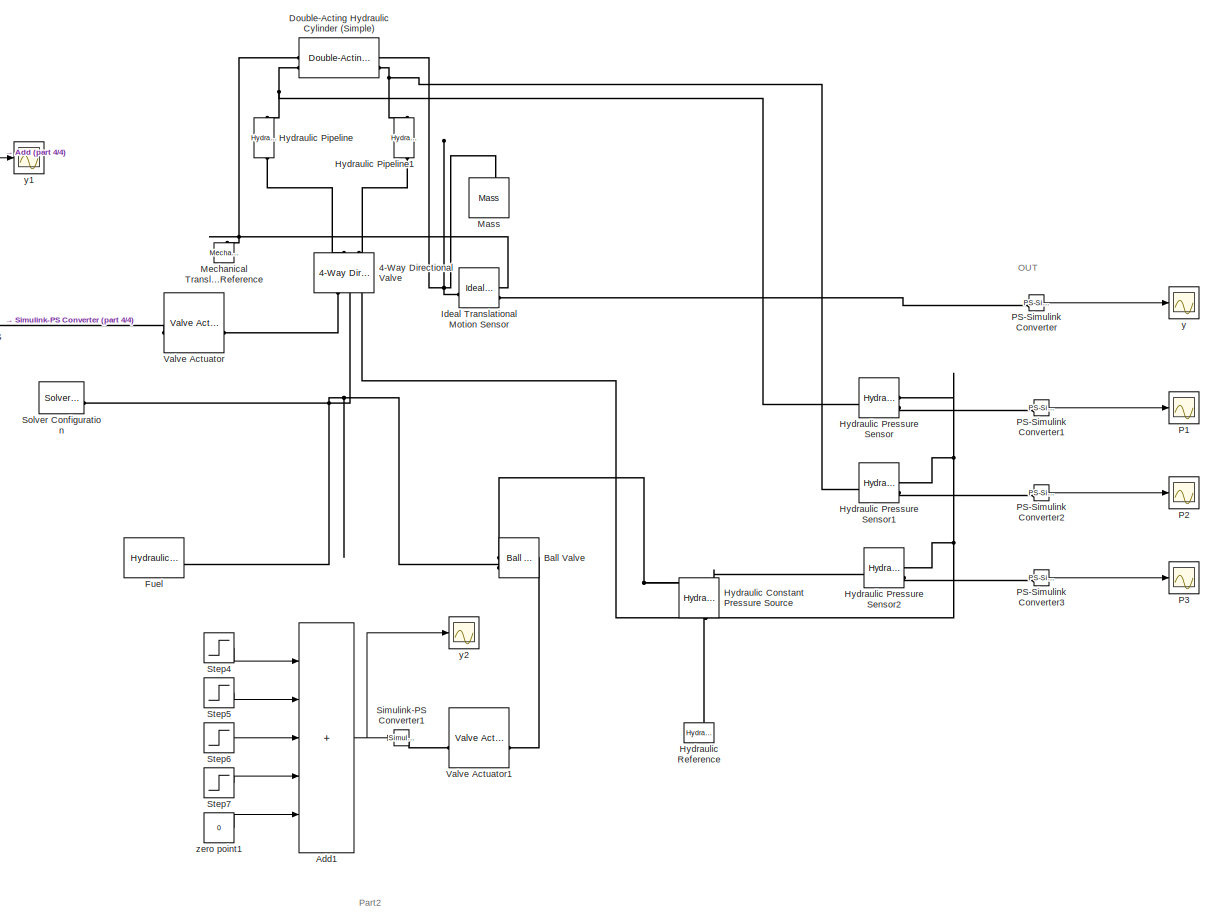
[diagram: root canvas - part 1/4, right side, full height]
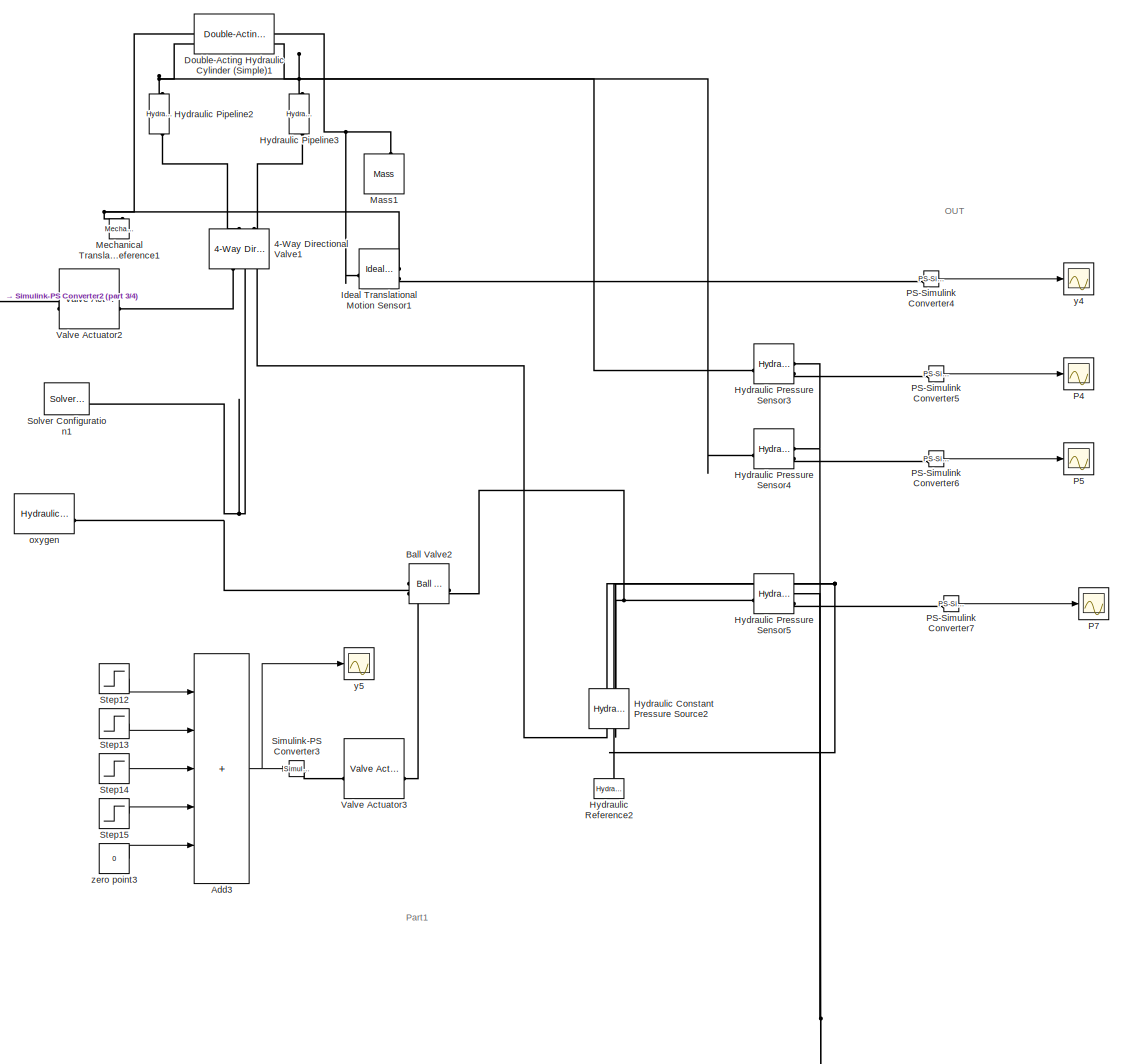
[diagram: root canvas - part 2/4, left side, full height]
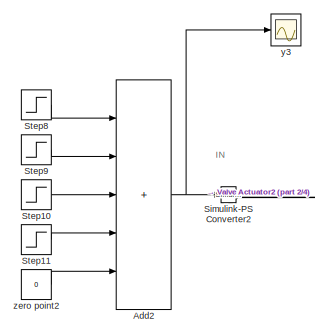
[diagram: root canvas - part 3/4, top left region]
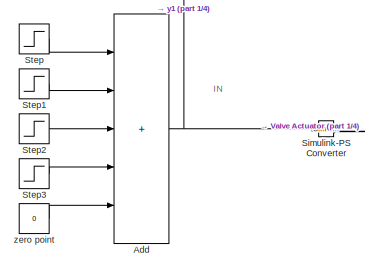
[diagram: root canvas - part 4/4, top center region]
MODEL slx_8445d724061f
KIND model
CONFIG AbsTol = auto
CONFIG EnableMultiTasking = off
CONFIG FixedStep = auto
CONFIG MaxStep = auto
CONFIG MinStep = auto
CONFIG RelTol = 1e-3
CONFIG SampleTimeConstraint = Unconstrained
CONFIG SolverName = VariableStepAuto
CONFIG StartTime = 0.0
CONFIG StopTime = 10.0
BLOCK [Reference] 4-Way Directional Valve  REF=sh_lib/Valves/Directional Valves/4-Way Directional
Valve
  NameLocation = right
  SourceBlock = sh_lib/Valves/Directional Valves/4-Way Directional\nValve
  SourceType = 4-Way Directional\nValve
BLOCK [Reference] 4-Way Directional Valve1  REF=sh_lib/Valves/Directional Valves/4-Way Directional
Valve
  NameLocation = right
  SourceBlock = sh_lib/Valves/Directional Valves/4-Way Directional\nValve
  SourceType = 4-Way Directional\nValve
BLOCK [Sum] Add
  IconShape = rectangular
  Inputs = +++++
BLOCK [Sum] Add1
  IconShape = rectangular
  Inputs = +++++
BLOCK [Sum] Add2
  IconShape = rectangular
  Inputs = +++++
BLOCK [Sum] Add3
  IconShape = rectangular
  Inputs = +++++
BLOCK [Reference] Ball Valve  REF=sh_lib/Valves/Flow Control Valves/Ball Valve
  NameLocation = top
  SourceBlock = sh_lib/Valves/Flow Control Valves/Ball Valve
  SourceType = Ball Valve
BLOCK [Reference] Ball Valve2  REF=sh_lib/Valves/Flow Control Valves/Ball Valve
  NameLocation = top
  SourceBlock = sh_lib/Valves/Flow Control Valves/Ball Valve
  SourceType = Ball Valve
BLOCK [Reference] Double-Acting Hydraulic Cylinder (Simple)  REF=sh_lib/Hydraulic Cylinders/Double-Acting
Hydraulic Cylinder
(Simple)
  SourceBlock = sh_lib/Hydraulic Cylinders/Double-Acting\nHydraulic Cylinder\n(Simple)
  SourceType = Double-Acting\nHydraulic Cylinder\n(Simple)
BLOCK [Reference] Double-Acting Hydraulic Cylinder (Simple)1  REF=sh_lib/Hydraulic Cylinders/Double-Acting
Hydraulic Cylinder
(Simple)
  SourceBlock = sh_lib/Hydraulic Cylinders/Double-Acting\nHydraulic Cylinder\n(Simple)
  SourceType = Double-Acting\nHydraulic Cylinder\n(Simple)
BLOCK [Reference] Fuel  REF=sh_lib/Hydraulic Utilities/Hydraulic Fluid
  SourceBlock = sh_lib/Hydraulic Utilities/Hydraulic Fluid
  SourceType = Hydraulic Fluid
BLOCK [Reference] Hydraulic Constant Pressure Source  REF=fl_lib/Hydraulic/Hydraulic Sources/Hydraulic Constant
Pressure Source
  NameLocation = right
  SourceBlock = fl_lib/Hydraulic/Hydraulic Sources/Hydraulic Constant\nPressure Source
  SourceType = Hydraulic Constant\nPressure Source
BLOCK [Reference] Hydraulic Constant Pressure Source2  REF=fl_lib/Hydraulic/Hydraulic Sources/Hydraulic Constant
Pressure Source
  NameLocation = right
  SourceBlock = fl_lib/Hydraulic/Hydraulic Sources/Hydraulic Constant\nPressure Source
  SourceType = Hydraulic Constant\nPressure Source
BLOCK [Reference] Hydraulic Pipeline  REF=sh_lib/Pipelines/Hydraulic Pipeline
  NameLocation = right
  SourceBlock = sh_lib/Pipelines/Hydraulic Pipeline
  SourceType = Hydraulic Pipeline
BLOCK [Reference] Hydraulic Pipeline1  REF=sh_lib/Pipelines/Hydraulic Pipeline
  NameLocation = left
  SourceBlock = sh_lib/Pipelines/Hydraulic Pipeline
  SourceType = Hydraulic Pipeline
BLOCK [Reference] Hydraulic Pipeline2  REF=sh_lib/Pipelines/Hydraulic Pipeline
  NameLocation = right
  SourceBlock = sh_lib/Pipelines/Hydraulic Pipeline
  SourceType = Hydraulic Pipeline
BLOCK [Reference] Hydraulic Pipeline3  REF=sh_lib/Pipelines/Hydraulic Pipeline
  NameLocation = left
  SourceBlock = sh_lib/Pipelines/Hydraulic Pipeline
  SourceType = Hydraulic Pipeline
BLOCK [Reference] Hydraulic Pressure Sensor  REF=fl_lib/Hydraulic/Hydraulic Sensors/Hydraulic Pressure
Sensor
  SourceBlock = fl_lib/Hydraulic/Hydraulic Sensors/Hydraulic Pressure\nSensor
  SourceType = Hydraulic Pressure\nSensor
BLOCK [Reference] Hydraulic Pressure Sensor1  REF=fl_lib/Hydraulic/Hydraulic Sensors/Hydraulic Pressure
Sensor
  SourceBlock = fl_lib/Hydraulic/Hydraulic Sensors/Hydraulic Pressure\nSensor
  SourceType = Hydraulic Pressure\nSensor
BLOCK [Reference] Hydraulic Pressure Sensor2  REF=fl_lib/Hydraulic/Hydraulic Sensors/Hydraulic Pressure
Sensor
  SourceBlock = fl_lib/Hydraulic/Hydraulic Sensors/Hydraulic Pressure\nSensor
  SourceType = Hydraulic Pressure\nSensor
BLOCK [Reference] Hydraulic Pressure Sensor3  REF=fl_lib/Hydraulic/Hydraulic Sensors/Hydraulic Pressure
Sensor
  SourceBlock = fl_lib/Hydraulic/Hydraulic Sensors/Hydraulic Pressure\nSensor
  SourceType = Hydraulic Pressure\nSensor
BLOCK [Reference] Hydraulic Pressure Sensor4  REF=fl_lib/Hydraulic/Hydraulic Sensors/Hydraulic Pressure
Sensor
  SourceBlock = fl_lib/Hydraulic/Hydraulic Sensors/Hydraulic Pressure\nSensor
  SourceType = Hydraulic Pressure\nSensor
BLOCK [Reference] Hydraulic Pressure Sensor5  REF=fl_lib/Hydraulic/Hydraulic Sensors/Hydraulic Pressure
Sensor
  SourceBlock = fl_lib/Hydraulic/Hydraulic Sensors/Hydraulic Pressure\nSensor
  SourceType = Hydraulic Pressure\nSensor
BLOCK [Reference] Hydraulic Reference  REF=fl_lib/Hydraulic/Hydraulic Elements/Hydraulic Reference
  NameLocation = right
  SourceBlock = fl_lib/Hydraulic/Hydraulic Elements/Hydraulic Reference
  SourceType = Hydraulic Reference
BLOCK [Reference] Hydraulic Reference2  REF=fl_lib/Hydraulic/Hydraulic Elements/Hydraulic Reference
  NameLocation = right
  SourceBlock = fl_lib/Hydraulic/Hydraulic Elements/Hydraulic Reference
  SourceType = Hydraulic Reference
BLOCK [Reference] Ideal Translational Motion Sensor  REF=fl_lib/Mechanical/Mechanical Sensors/Ideal Translational
Motion Sensor
  SourceBlock = fl_lib/Mechanical/Mechanical Sensors/Ideal Translational\nMotion Sensor
  SourceType = Ideal Translational\nMotion Sensor
BLOCK [Reference] Ideal Translational Motion Sensor1  REF=fl_lib/Mechanical/Mechanical Sensors/Ideal Translational
Motion Sensor
  SourceBlock = fl_lib/Mechanical/Mechanical Sensors/Ideal Translational\nMotion Sensor
  SourceType = Ideal Translational\nMotion Sensor
BLOCK [Reference] Mass  REF=fl_lib/Mechanical/Translational
Elements/Mass
  NameLocation = right
  SourceBlock = fl_lib/Mechanical/Translational\nElements/Mass
  SourceType = Mass
BLOCK [Reference] Mass1  REF=fl_lib/Mechanical/Translational
Elements/Mass
  NameLocation = right
  SourceBlock = fl_lib/Mechanical/Translational\nElements/Mass
  SourceType = Mass
BLOCK [Reference] Mechanical Translational Reference  REF=fl_lib/Mechanical/Translational
Elements/Mechanical
Translational
Reference
  NameLocation = right
  SourceBlock = fl_lib/Mechanical/Translational\nElements/Mechanical\nTranslational\nReference
  SourceType = Mechanical\nTranslational\nReference
BLOCK [Reference] Mechanical Translational Reference1  REF=fl_lib/Mechanical/Translational
Elements/Mechanical
Translational
Reference
  NameLocation = right
  SourceBlock = fl_lib/Mechanical/Translational\nElements/Mechanical\nTranslational\nReference
  SourceType = Mechanical\nTranslational\nReference
BLOCK [Scope] P1
  Floating = off
  NumInputPorts = 1
  ScopeSpecificationString = Simulink.scopes.TimeScopeBlockCfg('CurrentConfiguration', extmgr.ConfigurationSet(extmgr.Configuration('Core','General UI',true),extmgr.Configuration('Core','Source UI',true),extmgr.Configuration('Sources','WiredSimulink',true,'DataLoggingVariableName','ScopeData1'),extmgr.Configuration('Visuals','Time Domain',true,'SerializedDisplays',{struct('MinYLimReal','-140557795949.42059','MaxYLimReal','126...<+1500ch>
BLOCK [Scope] P2
  Floating = off
  NumInputPorts = 1
  ScopeSpecificationString = Simulink.scopes.TimeScopeBlockCfg('CurrentConfiguration', extmgr.ConfigurationSet(extmgr.Configuration('Core','General UI',true),extmgr.Configuration('Core','Source UI',true),extmgr.Configuration('Sources','WiredSimulink',true,'DataLoggingVariableName','ScopeData2'),extmgr.Configuration('Visuals','Time Domain',true,'SerializedDisplays',{struct('MinYLimReal','-1758434029.44004','MaxYLimReal','15825...<+1484ch>
BLOCK [Scope] P3
  Floating = off
  NumInputPorts = 1
  ScopeSpecificationString = Simulink.scopes.TimeScopeBlockCfg('CurrentConfiguration', extmgr.ConfigurationSet(extmgr.Configuration('Core','General UI',true),extmgr.Configuration('Core','Source UI',true),extmgr.Configuration('Sources','WiredSimulink',true,'DataLoggingVariableName','ScopeData2'),extmgr.Configuration('Visuals','Time Domain',true,'SerializedDisplays',{struct('MinYLimReal','199999999999.99976','MaxYLimReal','2200...<+1498ch>
BLOCK [Scope] P4
  Floating = off
  NumInputPorts = 1
  ScopeSpecificationString = Simulink.scopes.TimeScopeBlockCfg('CurrentConfiguration', extmgr.ConfigurationSet(extmgr.Configuration('Core','General UI',true),extmgr.Configuration('Core','Source UI',true),extmgr.Configuration('Sources','WiredSimulink',true,'DataLoggingVariableName','ScopeData4'),extmgr.Configuration('Visuals','Time Domain',true,'SerializedDisplays',{struct('MinYLimReal','-149549635562.87357','MaxYLimReal','134...<+1467ch>
BLOCK [Scope] P5
  Floating = off
  NumInputPorts = 1
  ScopeSpecificationString = Simulink.scopes.TimeScopeBlockCfg('CurrentConfiguration', extmgr.ConfigurationSet(extmgr.Configuration('Core','General UI',true),extmgr.Configuration('Core','Source UI',true),extmgr.Configuration('Sources','WiredSimulink',true,'DataLoggingVariableName','ScopeData5'),extmgr.Configuration('Visuals','Time Domain',true,'SerializedDisplays',{struct('MinYLimReal','-3394489538.42877','MaxYLimReal','30550...<+1484ch>
BLOCK [Scope] P7
  Floating = off
  NumInputPorts = 1
  ScopeSpecificationString = Simulink.scopes.TimeScopeBlockCfg('CurrentConfiguration', extmgr.ConfigurationSet(extmgr.Configuration('Core','General UI',true),extmgr.Configuration('Core','Source UI',true),extmgr.Configuration('Sources','WiredSimulink',true,'DataLoggingVariableName','ScopeData8'),extmgr.Configuration('Visuals','Time Domain',true,'SerializedDisplays',{struct('MinYLimReal','199999999999.99976','MaxYLimReal','2200...<+1498ch>
BLOCK [Reference] PS-Simulink Converter  REF=nesl_utility/PS-Simulink
Converter
  SourceBlock = nesl_utility/PS-Simulink\nConverter
  SourceType = PS-Simulink\nConverter
BLOCK [Reference] PS-Simulink Converter1  REF=nesl_utility/PS-Simulink
Converter
  SourceBlock = nesl_utility/PS-Simulink\nConverter
  SourceType = PS-Simulink\nConverter
BLOCK [Reference] PS-Simulink Converter2  REF=nesl_utility/PS-Simulink
Converter
  SourceBlock = nesl_utility/PS-Simulink\nConverter
  SourceType = PS-Simulink\nConverter
BLOCK [Reference] PS-Simulink Converter3  REF=nesl_utility/PS-Simulink
Converter
  SourceBlock = nesl_utility/PS-Simulink\nConverter
  SourceType = PS-Simulink\nConverter
BLOCK [Reference] PS-Simulink Converter4  REF=nesl_utility/PS-Simulink
Converter
  SourceBlock = nesl_utility/PS-Simulink\nConverter
  SourceType = PS-Simulink\nConverter
BLOCK [Reference] PS-Simulink Converter5  REF=nesl_utility/PS-Simulink
Converter
  SourceBlock = nesl_utility/PS-Simulink\nConverter
  SourceType = PS-Simulink\nConverter
BLOCK [Reference] PS-Simulink Converter6  REF=nesl_utility/PS-Simulink
Converter
  SourceBlock = nesl_utility/PS-Simulink\nConverter
  SourceType = PS-Simulink\nConverter
BLOCK [Reference] PS-Simulink Converter7  REF=nesl_utility/PS-Simulink
Converter
  SourceBlock = nesl_utility/PS-Simulink\nConverter
  SourceType = PS-Simulink\nConverter
BLOCK [Reference] Simulink-PS Converter  REF=nesl_utility/Simulink-PS
Converter
  SourceBlock = nesl_utility/Simulink-PS\nConverter
  SourceType = Simulink-PS\nConverter
BLOCK [Reference] Simulink-PS Converter1  REF=nesl_utility/Simulink-PS
Converter
  SourceBlock = nesl_utility/Simulink-PS\nConverter
  SourceType = Simulink-PS\nConverter
BLOCK [Reference] Simulink-PS Converter2  REF=nesl_utility/Simulink-PS
Converter
  SourceBlock = nesl_utility/Simulink-PS\nConverter
  SourceType = Simulink-PS\nConverter
BLOCK [Reference] Simulink-PS Converter3  REF=nesl_utility/Simulink-PS
Converter
  SourceBlock = nesl_utility/Simulink-PS\nConverter
  SourceType = Simulink-PS\nConverter
BLOCK [Reference] Solver Configuration  REF=nesl_utility/Solver
Configuration
  SourceBlock = nesl_utility/Solver\nConfiguration
  SourceType = Solver\nConfiguration
BLOCK [Reference] Solver Configuration1  REF=nesl_utility/Solver
Configuration
  SourceBlock = nesl_utility/Solver\nConfiguration
  SourceType = Solver\nConfiguration
BLOCK [Step] Step
  After = -2
  SampleTime = 0
  Time = 2
BLOCK [Step] Step1
  After = 2
  SampleTime = 0
  Time = 4
BLOCK [Step] Step10
  After = 2
  SampleTime = 0
  Time = 6
BLOCK [Step] Step11
  After = -2
  SampleTime = 0
  Time = 8
BLOCK [Step] Step12
  After = -2
  SampleTime = 0
  Time = 2
BLOCK [Step] Step13
  After = 2
  SampleTime = 0
  Time = 4
BLOCK [Step] Step14
  After = 2
  SampleTime = 0
  Time = 6
BLOCK [Step] Step15
  After = -2
  SampleTime = 0
  Time = 8
BLOCK [Step] Step2
  After = 2
  SampleTime = 0
  Time = 6
BLOCK [Step] Step3
  After = -2
  SampleTime = 0
  Time = 8
BLOCK [Step] Step4
  After = -2
  SampleTime = 0
  Time = 2
BLOCK [Step] Step5
  After = 2
  SampleTime = 0
  Time = 4
BLOCK [Step] Step6
  After = 2
  SampleTime = 0
  Time = 6
BLOCK [Step] Step7
  After = -2
  SampleTime = 0
  Time = 8
BLOCK [Step] Step8
  After = -2
  SampleTime = 0
  Time = 2
BLOCK [Step] Step9
  After = 2
  SampleTime = 0
  Time = 4
BLOCK [Reference] Valve Actuator  REF=sh_lib/Valves/Valve Actuators/Valve Actuator
  SourceBlock = sh_lib/Valves/Valve Actuators/Valve Actuator
  SourceType = Valve Actuator
BLOCK [Reference] Valve Actuator1  REF=sh_lib/Valves/Valve Actuators/Valve Actuator
  SourceBlock = sh_lib/Valves/Valve Actuators/Valve Actuator
  SourceType = Valve Actuator
BLOCK [Reference] Valve Actuator2  REF=sh_lib/Valves/Valve Actuators/Valve Actuator
  SourceBlock = sh_lib/Valves/Valve Actuators/Valve Actuator
  SourceType = Valve Actuator
BLOCK [Reference] Valve Actuator3  REF=sh_lib/Valves/Valve Actuators/Valve Actuator
  SourceBlock = sh_lib/Valves/Valve Actuators/Valve Actuator
  SourceType = Valve Actuator
BLOCK [Reference] oxygen  REF=sh_lib/Hydraulic Utilities/Hydraulic Fluid
  SourceBlock = sh_lib/Hydraulic Utilities/Hydraulic Fluid
  SourceType = Hydraulic Fluid
BLOCK [Scope] y
  Floating = off
  NumInputPorts = 1
  ScopeSpecificationString = Simulink.scopes.TimeScopeBlockCfg('CurrentConfiguration', extmgr.ConfigurationSet(extmgr.Configuration('Core','General UI',true),extmgr.Configuration('Core','Source UI',true),extmgr.Configuration('Sources','WiredSimulink',true,'DataLoggingVariableName','ScopeData2'),extmgr.Configuration('Visuals','Time Domain',true,'SerializedDisplays',{struct('MinYLimReal','0.76559','MaxYLimReal','1.10899','YLabe...<+1378ch>
BLOCK [Scope] y1
  Floating = off
  NumInputPorts = 1
  ScopeSpecificationString = Simulink.scopes.TimeScopeBlockCfg('CurrentConfiguration', extmgr.ConfigurationSet(extmgr.Configuration('Core','General UI',true),extmgr.Configuration('Core','Source UI',true),extmgr.Configuration('Sources','WiredSimulink',true,'DataLoggingVariableName','ScopeData3'),extmgr.Configuration('Visuals','Time Domain',true,'SerializedDisplays',{struct('MinYLimReal','-2.5','MaxYLimReal','2.5','YLabelReal',...<+1338ch>
BLOCK [Scope] y2
  Floating = off
  NumInputPorts = 1
  ScopeSpecificationString = Simulink.scopes.TimeScopeBlockCfg('CurrentConfiguration', extmgr.ConfigurationSet(extmgr.Configuration('Core','General UI',true),extmgr.Configuration('Core','Source UI',true),extmgr.Configuration('Sources','WiredSimulink',true,'DataLoggingVariableName','ScopeData1'),extmgr.Configuration('Visuals','Time Domain',true,'SerializedDisplays',{struct('MinYLimReal','-2.5','MaxYLimReal','2.5','YLabelReal',...<+1339ch>
BLOCK [Scope] y3
  Floating = off
  NumInputPorts = 1
  ScopeSpecificationString = Simulink.scopes.TimeScopeBlockCfg('CurrentConfiguration', extmgr.ConfigurationSet(extmgr.Configuration('Core','General UI',true),extmgr.Configuration('Core','Source UI',true),extmgr.Configuration('Sources','WiredSimulink',true,'DataLoggingVariableName','ScopeData3'),extmgr.Configuration('Visuals','Time Domain',true,'SerializedDisplays',{struct('MinYLimReal','-2.5','MaxYLimReal','2.5','YLabelReal',...<+1339ch>
BLOCK [Scope] y4
  Floating = off
  NumInputPorts = 1
  ScopeSpecificationString = Simulink.scopes.TimeScopeBlockCfg('CurrentConfiguration', extmgr.ConfigurationSet(extmgr.Configuration('Core','General UI',true),extmgr.Configuration('Core','Source UI',true),extmgr.Configuration('Sources','WiredSimulink',true,'DataLoggingVariableName','ScopeData1'),extmgr.Configuration('Visuals','Time Domain',true,'SerializedDisplays',{struct('MinYLimReal','0.76495','MaxYLimReal','1.11487','YLabe...<+1379ch>
BLOCK [Scope] y5
  Floating = off
  NumInputPorts = 1
  ScopeSpecificationString = Simulink.scopes.TimeScopeBlockCfg('CurrentConfiguration', extmgr.ConfigurationSet(extmgr.Configuration('Core','General UI',true),extmgr.Configuration('Core','Source UI',true),extmgr.Configuration('Sources','WiredSimulink',true,'DataLoggingVariableName','ScopeData6'),extmgr.Configuration('Visuals','Time Domain',true,'SerializedDisplays',{struct('MinYLimReal','-2.5','MaxYLimReal','2.5','YLabelReal',...<+1339ch>
BLOCK [Constant] zero point
  Value = 0
BLOCK [Constant] zero point1
  Value = 0
BLOCK [Constant] zero point2
  Value = 0
BLOCK [Constant] zero point3
  Value = 0
ANNOTATION (root): IN
ANNOTATION (root): OUT
ANNOTATION (root): Part1
ANNOTATION (root): Part2
NET Add1:1 -> Simulink-PS Converter1:1, y2:1
NET Add2:1 -> Simulink-PS Converter2:1, y3:1
NET Add3:1 -> Simulink-PS Converter3:1, y5:1
NET Add:1 -> Simulink-PS Converter:1, y1:1
LINE PS-Simulink Converter1:1 -> P1:1
LINE PS-Simulink Converter2:1 -> P2:1
LINE PS-Simulink Converter3:1 -> P3:1
LINE PS-Simulink Converter4:1 -> y4:1
LINE PS-Simulink Converter5:1 -> P4:1
LINE PS-Simulink Converter6:1 -> P5:1
LINE PS-Simulink Converter7:1 -> P7:1
LINE PS-Simulink Converter:1 -> y:1
LINE Step10:1 -> Add2:3
LINE Step11:1 -> Add2:4
LINE Step12:1 -> Add3:1
LINE Step13:1 -> Add3:2
LINE Step14:1 -> Add3:3
LINE Step15:1 -> Add3:4
LINE Step1:1 -> Add:2
LINE Step2:1 -> Add:3
LINE Step3:1 -> Add:4
LINE Step4:1 -> Add1:1
LINE Step5:1 -> Add1:2
LINE Step6:1 -> Add1:3
LINE Step7:1 -> Add1:4
LINE Step8:1 -> Add2:1
LINE Step9:1 -> Add2:2
LINE Step:1 -> Add:1
LINE zero point1:1 -> Add1:5
LINE zero point2:1 -> Add2:5
LINE zero point3:1 -> Add3:5
LINE zero point:1 -> Add:5
PLINE 4-Way Directional Valve1:LConn1 -- Hydraulic Pipeline2:LConn1
PLINE 4-Way Directional Valve1:LConn2 -- Hydraulic Pipeline3:RConn1
PLINE 4-Way Directional Valve1:RConn1 -- Valve Actuator2:RConn1
PNET net1: 4-Way Directional Valve1:RConn2 -- Ball Valve2:RConn1 -- Solver Configuration1:RConn1 -- oxygen:RConn1
PNET net2: 4-Way Directional Valve1:RConn3 -- Hydraulic Constant Pressure Source2:RConn1 -- Hydraulic Pressure Sensor3:RConn1 -- Hydraulic Pressure Sensor4:RConn1 -- Hydraulic Pressure Sensor5:RConn1 -- Hydraulic Reference2:LConn1
PLINE 4-Way Directional Valve:LConn1 -- Hydraulic Pipeline:LConn1
PLINE 4-Way Directional Valve:LConn2 -- Hydraulic Pipeline1:RConn1
PLINE 4-Way Directional Valve:RConn1 -- Valve Actuator:RConn1
PNET net3: 4-Way Directional Valve:RConn2 -- Ball Valve:RConn1 -- Fuel:RConn1 -- Solver Configuration:RConn1
PNET net4: 4-Way Directional Valve:RConn3 -- Hydraulic Constant Pressure Source:RConn1 -- Hydraulic Pressure Sensor1:RConn1 -- Hydraulic Pressure Sensor2:RConn1 -- Hydraulic Pressure Sensor:RConn1 -- Hydraulic Reference:LConn1
PLINE Ball Valve2:LConn1 -- Valve Actuator3:RConn1
PNET net5: Ball Valve2:LConn2 -- Hydraulic Constant Pressure Source2:LConn1 -- Hydraulic Pressure Sensor5:LConn1
PLINE Ball Valve:LConn1 -- Valve Actuator1:RConn1
PNET net6: Ball Valve:LConn2 -- Hydraulic Constant Pressure Source:LConn1 -- Hydraulic Pressure Sensor2:LConn1
PNET net7: Double-Acting Hydraulic Cylinder (Simple)1:LConn1 -- Ideal Translational Motion Sensor1:RConn1 -- Mechanical Translational Reference1:LConn1
PNET net8: Double-Acting Hydraulic Cylinder (Simple)1:LConn2 -- Hydraulic Pipeline2:RConn1 -- Hydraulic Pressure Sensor3:LConn1
PNET net9: Double-Acting Hydraulic Cylinder (Simple)1:RConn1 -- Ideal Translational Motion Sensor1:LConn1 -- Mass1:LConn1
PNET net10: Double-Acting Hydraulic Cylinder (Simple)1:RConn2 -- Hydraulic Pipeline3:LConn1 -- Hydraulic Pressure Sensor4:LConn1
PNET net11: Double-Acting Hydraulic Cylinder (Simple):LConn1 -- Ideal Translational Motion Sensor:RConn1 -- Mechanical Translational Reference:LConn1
PNET net12: Double-Acting Hydraulic Cylinder (Simple):LConn2 -- Hydraulic Pipeline:RConn1 -- Hydraulic Pressure Sensor:LConn1
PNET net13: Double-Acting Hydraulic Cylinder (Simple):RConn1 -- Ideal Translational Motion Sensor:LConn1 -- Mass:LConn1
PNET net14: Double-Acting Hydraulic Cylinder (Simple):RConn2 -- Hydraulic Pipeline1:LConn1 -- Hydraulic Pressure Sensor1:LConn1
PLINE Hydraulic Pressure Sensor1:RConn2 -- PS-Simulink Converter2:LConn1
PLINE Hydraulic Pressure Sensor2:RConn2 -- PS-Simulink Converter3:LConn1
PLINE Hydraulic Pressure Sensor3:RConn2 -- PS-Simulink Converter5:LConn1
PLINE Hydraulic Pressure Sensor4:RConn2 -- PS-Simulink Converter6:LConn1
PLINE Hydraulic Pressure Sensor5:RConn2 -- PS-Simulink Converter7:LConn1
PLINE Hydraulic Pressure Sensor:RConn2 -- PS-Simulink Converter1:LConn1
PLINE Ideal Translational Motion Sensor1:RConn2 -- PS-Simulink Converter4:LConn1
PLINE Ideal Translational Motion Sensor:RConn2 -- PS-Simulink Converter:LConn1
PLINE Simulink-PS Converter1:RConn1 -- Valve Actuator1:LConn1
PLINE Simulink-PS Converter2:RConn1 -- Valve Actuator2:LConn1
PLINE Simulink-PS Converter3:RConn1 -- Valve Actuator3:LConn1
PLINE Simulink-PS Converter:RConn1 -- Valve Actuator:LConn1
note: NET lines group one-source signal fan-out (src -> all destinations, sorted); 1:1 wires keep LINE; PNET lines group multi-terminal physical nets as a canonical sorted terminal list (undirected conserving connections); 2-terminal nets keep the pairwise PLINE form
